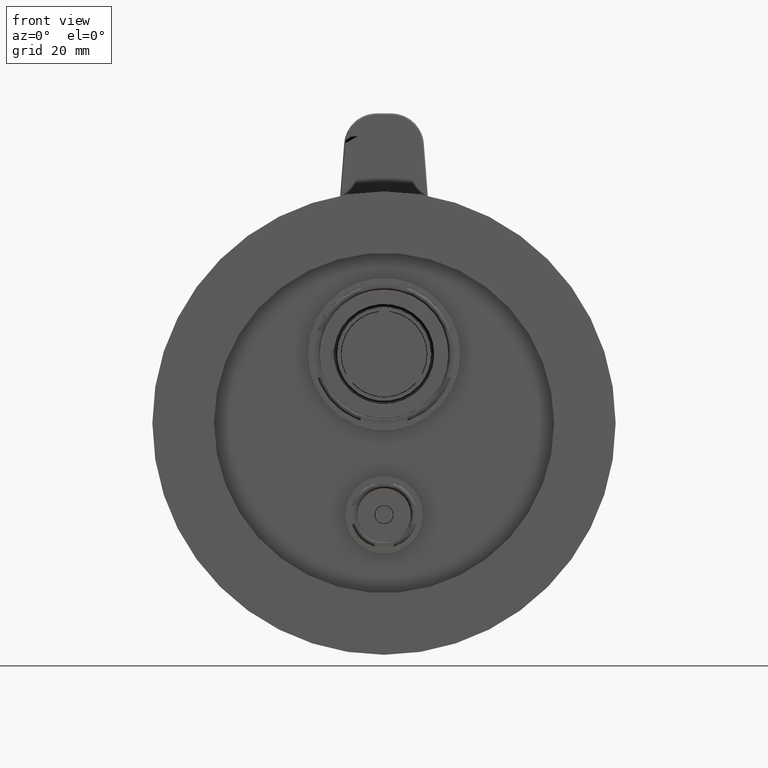
[diagram: clean part render]
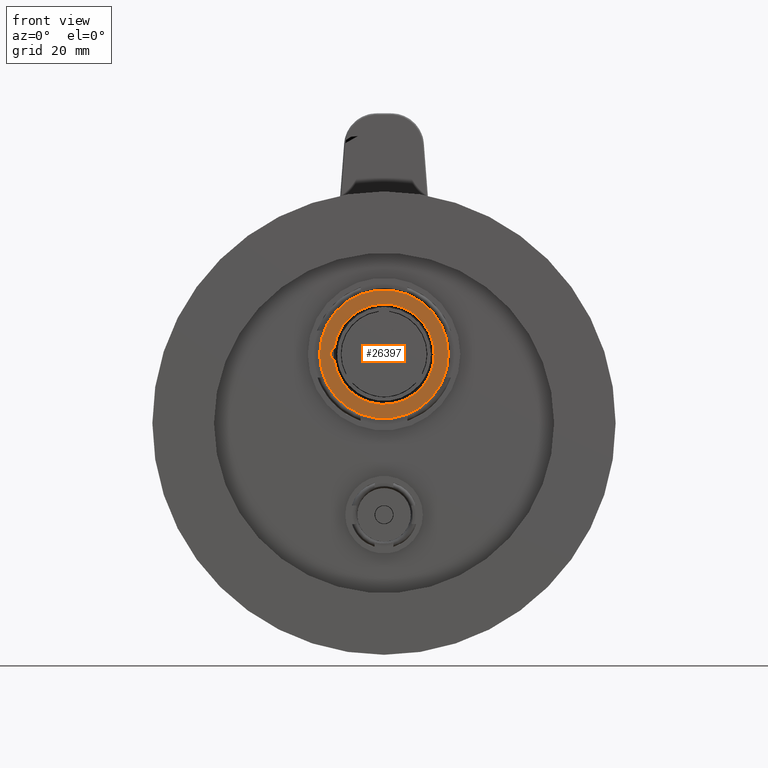
[diagram: same view with one face highlighted and labeled with its STEP entity id]
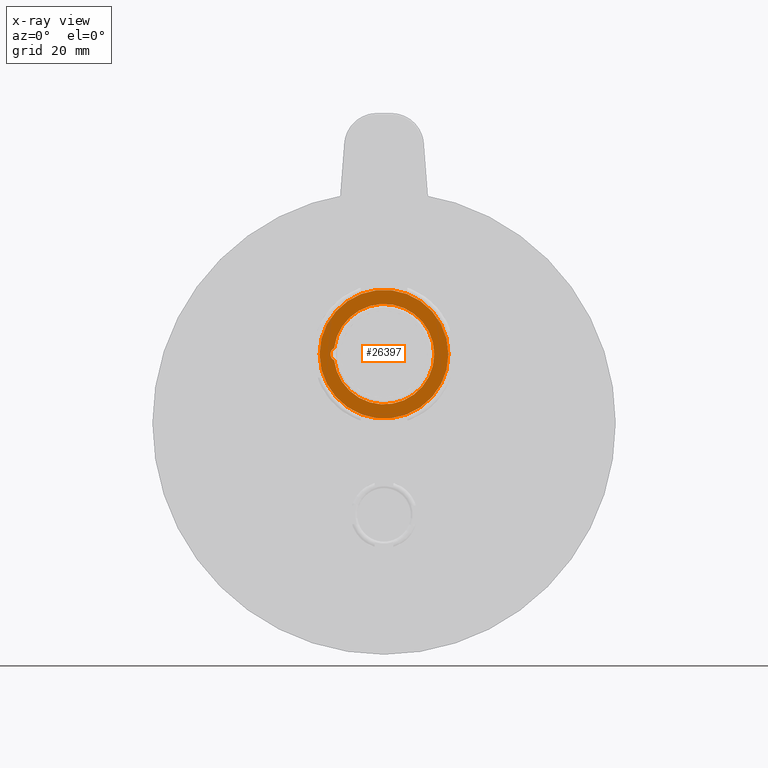
[diagram: x-ray of the same camera — body ghosted, the highlighted face saturated]
A machine part, front view. The second image highlights one B-rep face of the part: STEP entity #26397.
The next image is the same camera in x-ray: the body ghosted, the highlighted face saturated — about 0% of this face is hidden behind the body in this view.
In plain terms, the highlighted planar face has unit normal (0, -1, 0).
Its self-contained STEP definition (entity closure, byte-faithful):
#7051=CARTESIAN_POINT('',(0.E0,5.35E1,2.55E1));
#7052=DIRECTION('',(0.E0,-1.E0,0.E0));
#7053=DIRECTION('',(1.E0,0.E0,0.E0));
#7054=AXIS2_PLACEMENT_3D('',#7051,#7052,#7053);
#7075=CARTESIAN_POINT('',(0.E0,5.35E1,2.55E1));
#7076=DIRECTION('',(0.E0,-1.E0,0.E0));
#7077=DIRECTION('',(1.E0,0.E0,0.E0));
#7078=AXIS2_PLACEMENT_3D('',#7075,#7076,#7077);
#7109=CARTESIAN_POINT('',(0.E0,5.35E1,2.55E1));
#7110=DIRECTION('',(0.E0,-1.E0,0.E0));
#7111=DIRECTION('',(-1.E0,0.E0,0.E0));
#7112=AXIS2_PLACEMENT_3D('',#7109,#7110,#7111);
#8266=CARTESIAN_POINT('',(-1.75E1,5.35E1,2.55E1));
#8267=DIRECTION('',(0.E0,-1.E0,0.E0));
#8268=DIRECTION('',(-4.464285714286E-1,0.E0,8.948192725977E-1));
#8269=AXIS2_PLACEMENT_3D('',#8266,#8267,#8268);
#8276=CARTESIAN_POINT('',(0.E0,5.35E1,2.55E1));
#8277=DIRECTION('',(0.E0,-1.E0,0.E0));
#8278=DIRECTION('',(-9.928571428571E-1,0.E0,-1.193092363464E-1));
#8279=AXIS2_PLACEMENT_3D('',#8276,#8277,#8278);
#14770=CARTESIAN_POINT('',(1.875E1,5.35E1,2.55E1));
#14771=CARTESIAN_POINT('',(-1.861607142857E1,5.35E1,2.773704818149E1));
#14772=VERTEX_POINT('',#14770);
#14773=VERTEX_POINT('',#14771);
#14774=CARTESIAN_POINT('',(2.405E1,5.35E1,2.55E1));
#14775=CARTESIAN_POINT('',(-2.405E1,5.35E1,2.55E1));
#14776=VERTEX_POINT('',#14774);
#14777=VERTEX_POINT('',#14775);
#14778=CARTESIAN_POINT('',(-1.861607142857E1,5.35E1,2.326295181851E1));
#14779=VERTEX_POINT('',#14778);
#26379=CARTESIAN_POINT('',(0.E0,5.35E1,-2.5E-1));
#26380=DIRECTION('',(0.E0,-1.E0,0.E0));
#26381=DIRECTION('',(-1.E0,0.E0,0.E0));
#26382=AXIS2_PLACEMENT_3D('',#26379,#26380,#26381);
#26383=PLANE('',#26382);
#26385=ORIENTED_EDGE('',*,*,#26384,.F.);
#26387=ORIENTED_EDGE('',*,*,#26386,.F.);
#26388=EDGE_LOOP('',(#26385,#26387));
#26389=FACE_OUTER_BOUND('',#26388,.F.);
#26390=ORIENTED_EDGE('',*,*,#26358,.T.);
#26392=ORIENTED_EDGE('',*,*,#26391,.T.);
#26394=ORIENTED_EDGE('',*,*,#26393,.T.);
#26395=EDGE_LOOP('',(#26390,#26392,#26394));
#26396=FACE_BOUND('',#26395,.F.);
#26397=ADVANCED_FACE('',(#26389,#26396),#26383,.T.);
#7055=CIRCLE('',#7054,1.875E1);
#7079=CIRCLE('',#7078,2.405E1);
#7113=CIRCLE('',#7112,2.405E1);
#8270=CIRCLE('',#8269,2.5E0);
#8280=CIRCLE('',#8279,1.875E1);
#26358=EDGE_CURVE('',#14772,#14773,#7055,.T.);
#26384=EDGE_CURVE('',#14776,#14777,#7079,.T.);
#26386=EDGE_CURVE('',#14777,#14776,#7113,.T.);
#26391=EDGE_CURVE('',#14773,#14779,#8270,.T.);
#26393=EDGE_CURVE('',#14779,#14772,#8280,.T.);